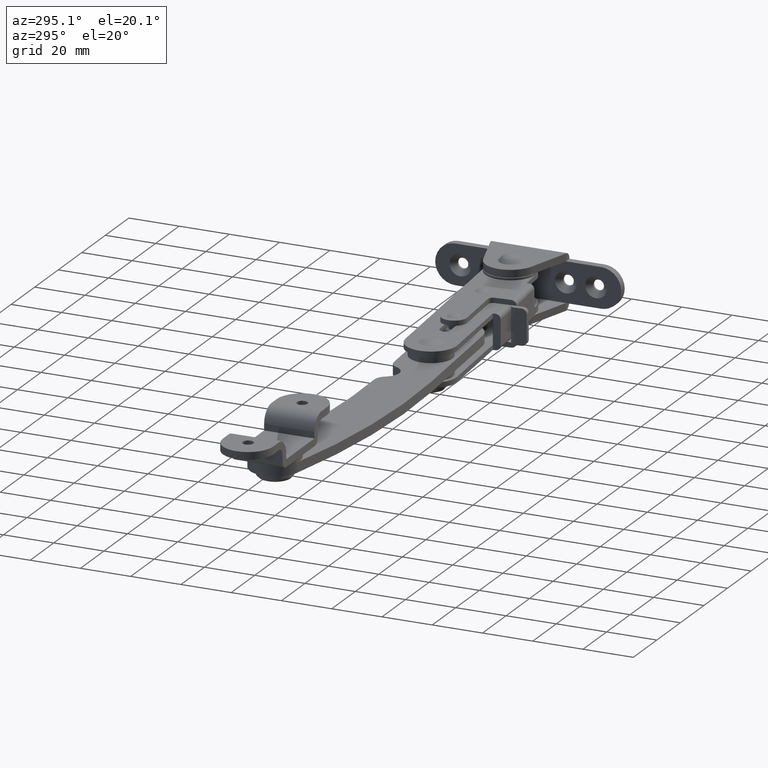
[diagram: clean part render]
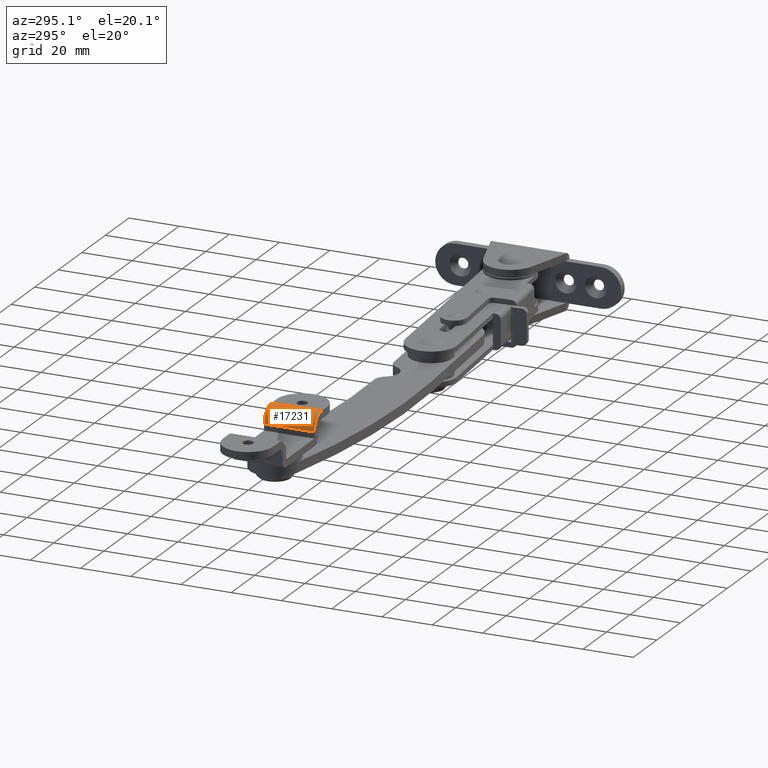
[diagram: same view with one face highlighted and labeled with its STEP entity id]
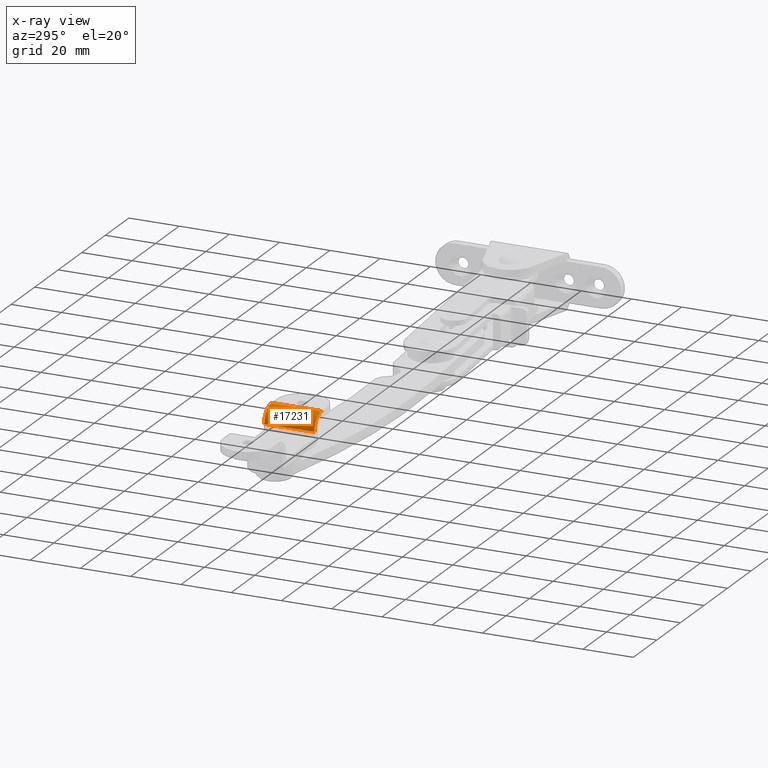
[diagram: x-ray of the same camera — body ghosted, the highlighted face saturated]
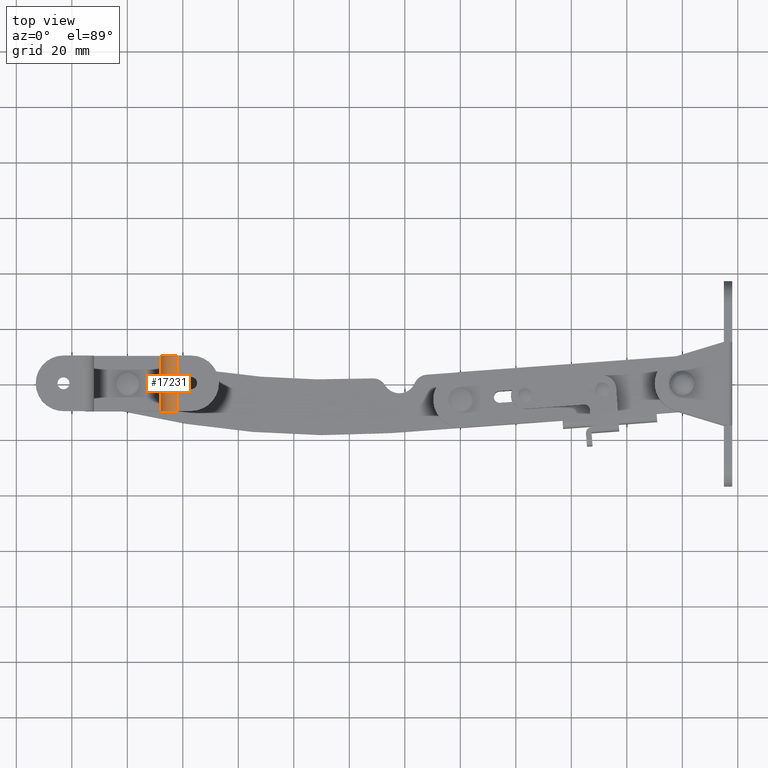
[diagram: same view with one face highlighted and labeled with its STEP entity id]
A machine part, auxiliary view. The second image highlights one B-rep face of the part: STEP entity #17231.
The next image is the same camera in x-ray: the body ghosted, the highlighted face saturated — about 0% of this face is hidden behind the body in this view.
A second angle (top view) of the same face is appended — the face is thin or edge-on in the first view.
In plain terms, the highlighted face is a freeform B-spline surface patch.
Its self-contained STEP definition (entity closure, byte-faithful):
#16718=CARTESIAN_POINT('',(-182.000000420197490,-9.999978329481541,15.0));
#16719=VERTEX_POINT('',#16718);
#16725=CARTESIAN_POINT('',(-188.000000420197490,-9.999978329481541,9.0));
#16726=VERTEX_POINT('',#16725);
#16727=CARTESIAN_POINT('',(-188.000000420197490,-9.999978329481541,9.0));
#16728=CARTESIAN_POINT('',(-188.000348666712110,-9.999978329481563,9.638184717465277));
#16729=CARTESIAN_POINT('',(-187.833927784302090,-9.999978329481506,10.668770948773179));
#16730=CARTESIAN_POINT('',(-187.254133911554700,-9.999978329481573,11.976445007745831));
#16731=CARTESIAN_POINT('',(-186.459085740537600,-9.999978329481490,13.105797548139209));
#16732=CARTESIAN_POINT('',(-185.482181201121590,-9.999978329481575,13.948390361477310));
#16733=CARTESIAN_POINT('',(-184.310028051275310,-9.999978329481523,14.574778645974281));
#16734=CARTESIAN_POINT('',(-183.227170788669610,-9.999978329481548,14.917817377328889));
#16735=CARTESIAN_POINT('',(-182.392681538100110,-9.999978329481539,15.000045227994891));
#16736=CARTESIAN_POINT('',(-182.000000420197490,-9.999978329481541,15.0));
#16737=B_SPLINE_CURVE_WITH_KNOTS('',3,(#16727,#16728,#16729,#16730,#16731,#16732,#16733,#16734,#16735,#16736),.UNSPECIFIED.,.F.,.U.,(4,1,1,1,1,1,1,4),(0.000000163228217,1.914444521572200,3.092613275389064,4.270747428749642,6.037854555607339,6.921493693459198,8.246938530659222,9.425014466010268),.UNSPECIFIED.);
#16738=EDGE_CURVE('',#16726,#16719,#16737,.T.);
#16826=CARTESIAN_POINT('',(-188.000000420197490,10.000007670518420,9.0));
#16827=VERTEX_POINT('',#16826);
#16833=CARTESIAN_POINT('',(-182.000000420197490,10.000007670518420,15.0));
#16834=VERTEX_POINT('',#16833);
#16835=CARTESIAN_POINT('',(-188.000000420197490,10.000007670518420,9.0));
#16836=CARTESIAN_POINT('',(-188.000348668977490,10.000007670518430,9.638184717405624));
#16837=CARTESIAN_POINT('',(-187.833927777988690,10.000007670518380,10.668770948939430));
#16838=CARTESIAN_POINT('',(-187.254133850169210,10.000007670518460,11.976445026385450));
#16839=CARTESIAN_POINT('',(-186.459086047156600,10.000007670518370,13.105797449841541));
#16840=CARTESIAN_POINT('',(-185.482180806211600,10.000007670518450,13.948390648390520));
#16841=CARTESIAN_POINT('',(-184.310027769499410,10.000007670518400,14.574777840608370));
#16842=CARTESIAN_POINT('',(-183.227173126431010,10.000007670518430,14.917818457839889));
#16843=CARTESIAN_POINT('',(-182.392679741870210,10.000007670518420,15.000045107837771));
#16844=CARTESIAN_POINT('',(-182.000000420197490,10.000007670518420,15.0));
#16845=B_SPLINE_CURVE_WITH_KNOTS('',3,(#16835,#16836,#16837,#16838,#16839,#16840,#16841,#16842,#16843,#16844),.UNSPECIFIED.,.F.,.U.,(4,1,1,1,1,1,1,4),(0.000000163228217,1.914444521572200,3.092613275389064,4.270747428749642,6.037854555607339,6.921493693459198,8.246938530659222,9.425014466010268),.UNSPECIFIED.);
#16846=EDGE_CURVE('',#16827,#16834,#16845,.T.);
#17197=CARTESIAN_POINT('',(-188.000000420197490,10.000007670518420,9.0));
#17198=CARTESIAN_POINT('',(-188.000000420197490,-9.999978329481541,9.0));
#17199=QUASI_UNIFORM_CURVE('',1,(#17197,#17198),.UNSPECIFIED.,.F.,.U.);
#17200=EDGE_CURVE('',#16827,#16726,#17199,.T.);
#17207=CARTESIAN_POINT('',(-187.997944370050900,10.500007320518421,8.842938310152759));
#17208=CARTESIAN_POINT('',(-187.997944370050900,-10.512477970731540,8.842938310152759));
#17209=CARTESIAN_POINT('',(-188.170953997421460,10.500007320518419,15.449909422985906));
#17210=CARTESIAN_POINT('',(-188.170953997421460,-10.512477970731540,15.449909422985906));
#17211=CARTESIAN_POINT('',(-181.578079407718690,10.500007320518415,14.985146836897894));
#17212=CARTESIAN_POINT('',(-181.578079407718690,-10.512477970731545,14.985146836897894));
#17220=(BOUNDED_SURFACE()B_SPLINE_SURFACE(1,2,((#17207,#17209,#17211),(#17208,#17210,#17212)),.UNSPECIFIED.,.F.,.F.,.U.)B_SPLINE_SURFACE_WITH_KNOTS((2,2),(3,3),(0.0,21.012485291249959),(0.0,10.626854734689561),.UNSPECIFIED.)GEOMETRIC_REPRESENTATION_ITEM()RATIONAL_B_SPLINE_SURFACE(((1.0,0.670944202448334,0.996392689567979),(1.0,0.670944202448334,0.996392689567979)))REPRESENTATION_ITEM('')SURFACE());
#17221=ORIENTED_EDGE('',*,*,#16738,.T.);
#17222=CARTESIAN_POINT('',(-182.000000420197490,10.000007670518420,15.0));
#17223=CARTESIAN_POINT('',(-182.000000420197490,-9.999978329481541,15.0));
#17224=QUASI_UNIFORM_CURVE('',1,(#17222,#17223),.UNSPECIFIED.,.F.,.U.);
#17225=EDGE_CURVE('',#16834,#16719,#17224,.T.);
#17226=ORIENTED_EDGE('',*,*,#17225,.F.);
#17227=ORIENTED_EDGE('',*,*,#16846,.F.);
#17228=ORIENTED_EDGE('',*,*,#17200,.T.);
#17229=EDGE_LOOP('',(#17221,#17226,#17227,#17228));
#17230=FACE_OUTER_BOUND('',#17229,.T.);
#17231=ADVANCED_FACE('',(#17230),#17220,.T.);